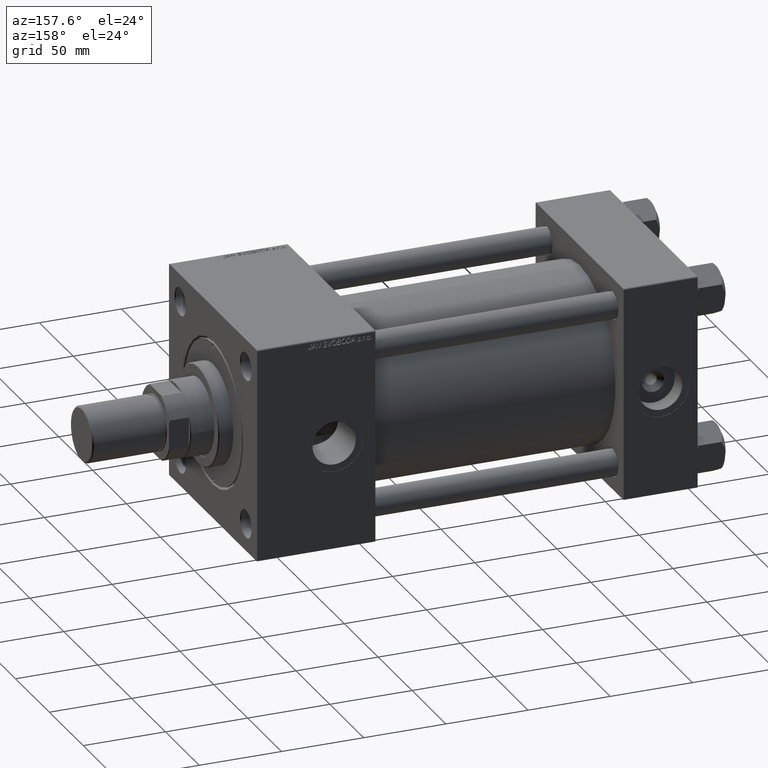
[diagram: clean part render]
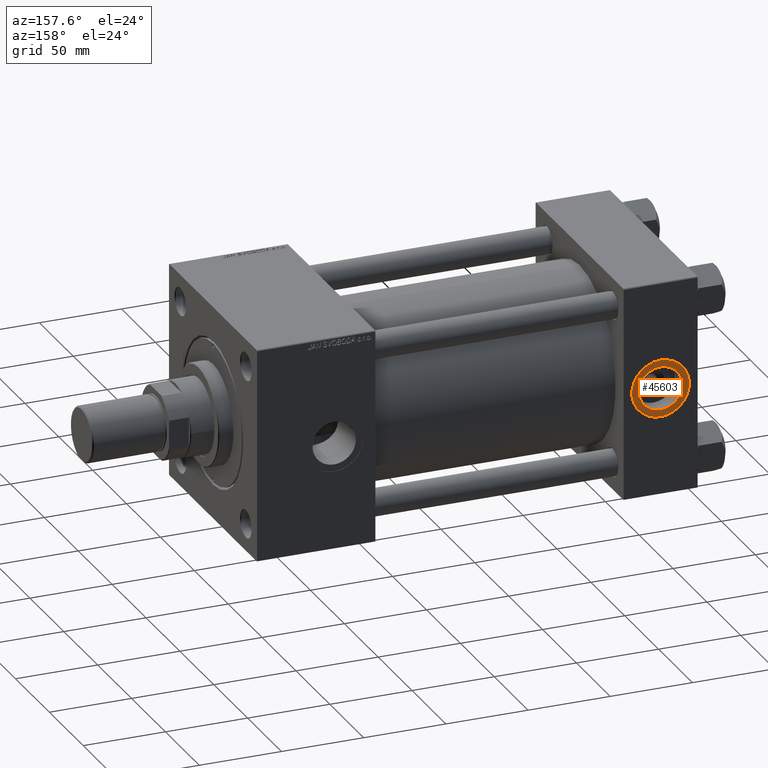
[diagram: same view with one face highlighted and labeled with its STEP entity id]
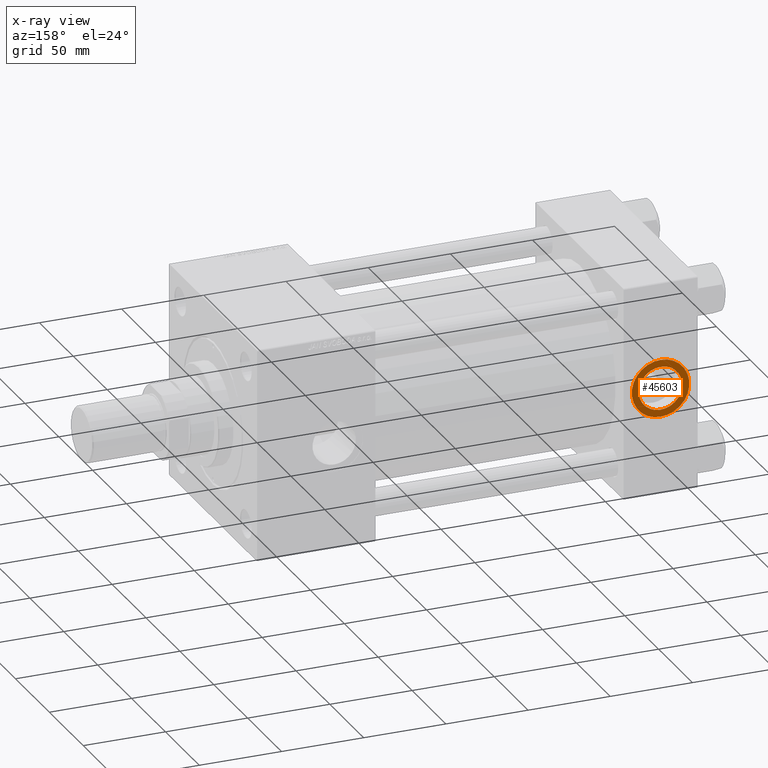
[diagram: x-ray of the same camera — body ghosted, the highlighted face saturated]
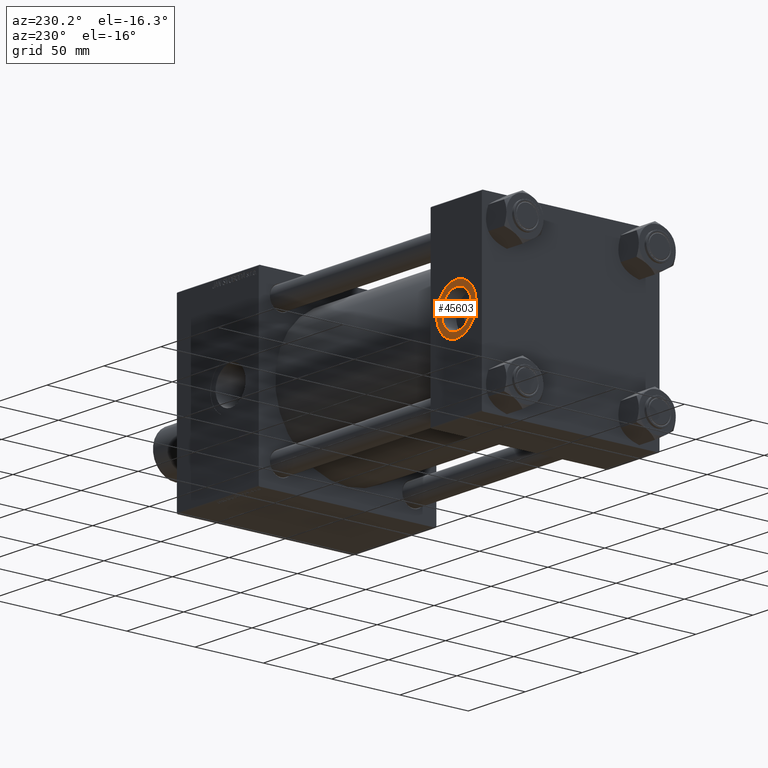
[diagram: same view with one face highlighted and labeled with its STEP entity id]
A machine part, auxiliary view. The second image highlights one B-rep face of the part: STEP entity #45603.
The next image is the same camera in x-ray: the body ghosted, the highlighted face saturated — about 0% of this face is hidden behind the body in this view.
A second angle (auxiliary view) of the same face is appended — the face is thin or edge-on in the first view.
In plain terms, the highlighted planar face has unit normal (0, 1, 0).
Its self-contained STEP definition (entity closure, byte-faithful):
#118 = VERTEX_POINT ( 'NONE', #45862 ) ;
#267 = CIRCLE ( 'NONE', #25925, 17.50000000000000000 ) ;
#1148 = DIRECTION ( 'NONE',  ( 0.000000000000000000, 0.000000000000000000, 1.000000000000000000 ) ) ;
#1231 = CARTESIAN_POINT ( 'NONE',  ( 22.50000000000000355, 64.79999999999999716, -17.50000000000000000 ) ) ;
#2815 = ORIENTED_EDGE ( 'NONE', *, *, #44899, .T. ) ;
#5062 = EDGE_CURVE ( 'NONE', #11662, #47567, #26764, .T. ) ;
#5442 = DIRECTION ( 'NONE',  ( 0.000000000000000000, 1.000000000000000000, 0.000000000000000000 ) ) ;
#5895 = CIRCLE ( 'NONE', #32364, 13.22000000000000419 ) ;
#8351 = DIRECTION ( 'NONE',  ( 0.000000000000000000, 0.000000000000000000, 1.000000000000000000 ) ) ;
#11583 = CARTESIAN_POINT ( 'NONE',  ( 22.50000000000000000, 64.79999999999999716, 0.000000000000000000 ) ) ;
#11662 = VERTEX_POINT ( 'NONE', #40270 ) ;
#13274 = EDGE_LOOP ( 'NONE', ( #31885, #2815 ) ) ;
#16674 = ORIENTED_EDGE ( 'NONE', *, *, #39327, .F. ) ;
#22336 = DIRECTION ( 'NONE',  ( 0.000000000000000000, 1.000000000000000000, 0.000000000000000000 ) ) ;
#24611 = DIRECTION ( 'NONE',  ( 0.000000000000000000, 0.000000000000000000, 1.000000000000000000 ) ) ;
#25289 = AXIS2_PLACEMENT_3D ( 'NONE', #31193, #35584, #8351 ) ;
#25925 = AXIS2_PLACEMENT_3D ( 'NONE', #34269, #22336, #38162 ) ;
#26764 = CIRCLE ( 'NONE', #41653, 13.22000000000000419 ) ;
#27394 = EDGE_CURVE ( 'NONE', #118, #28939, #47651, .T. ) ;
#28635 = DIRECTION ( 'NONE',  ( 0.000000000000000000, 1.000000000000000000, 0.000000000000000000 ) ) ;
#28939 = VERTEX_POINT ( 'NONE', #1231 ) ;
#31193 = CARTESIAN_POINT ( 'NONE',  ( 22.50000000000000000, 64.79999999999999716, 0.000000000000000000 ) ) ;
#31885 = ORIENTED_EDGE ( 'NONE', *, *, #27394, .T. ) ;
#32364 = AXIS2_PLACEMENT_3D ( 'NONE', #37065, #5442, #24611 ) ;
#34269 = CARTESIAN_POINT ( 'NONE',  ( 22.50000000000000000, 64.79999999999999716, 0.000000000000000000 ) ) ;
#35175 = PLANE ( 'NONE',  #43312 ) ;
#35584 = DIRECTION ( 'NONE',  ( 0.000000000000000000, 1.000000000000000000, 0.000000000000000000 ) ) ;
#37065 = CARTESIAN_POINT ( 'NONE',  ( 22.50000000000000000, 64.79999999999999716, 0.000000000000000000 ) ) ;
#37270 = CARTESIAN_POINT ( 'NONE',  ( 22.50000000000000000, 64.79999999999999716, 13.22000000000000419 ) ) ;
#38162 = DIRECTION ( 'NONE',  ( 0.000000000000000000, 0.000000000000000000, 1.000000000000000000 ) ) ;
#39064 = FACE_OUTER_BOUND ( 'NONE', #13274, .T. ) ;
#39327 = EDGE_CURVE ( 'NONE', #47567, #11662, #5895, .T. ) ;
#39830 = FACE_BOUND ( 'NONE', #49085, .T. ) ;
#40270 = CARTESIAN_POINT ( 'NONE',  ( 22.50000000000000000, 64.79999999999999716, -13.22000000000000419 ) ) ;
#41653 = AXIS2_PLACEMENT_3D ( 'NONE', #43435, #28635, #1148 ) ;
#41714 = ORIENTED_EDGE ( 'NONE', *, *, #5062, .F. ) ;
#43218 = DIRECTION ( 'NONE',  ( 0.000000000000000000, -0.000000000000000000, 1.000000000000000000 ) ) ;
#43312 = AXIS2_PLACEMENT_3D ( 'NONE', #11583, #43474, #43218 ) ;
#43435 = CARTESIAN_POINT ( 'NONE',  ( 22.50000000000000000, 64.79999999999999716, 0.000000000000000000 ) ) ;
#43474 = DIRECTION ( 'NONE',  ( 0.000000000000000000, 1.000000000000000000, 0.000000000000000000 ) ) ;
#44899 = EDGE_CURVE ( 'NONE', #28939, #118, #267, .T. ) ;
#45603 = ADVANCED_FACE ( 'NONE', ( #39830, #39064 ), #35175, .T. ) ;
#45862 = CARTESIAN_POINT ( 'NONE',  ( 22.50000000000000000, 64.79999999999999716, 17.50000000000000000 ) ) ;
#47567 = VERTEX_POINT ( 'NONE', #37270 ) ;
#47651 = CIRCLE ( 'NONE', #25289, 17.50000000000000000 ) ;
#49085 = EDGE_LOOP ( 'NONE', ( #16674, #41714 ) ) ;